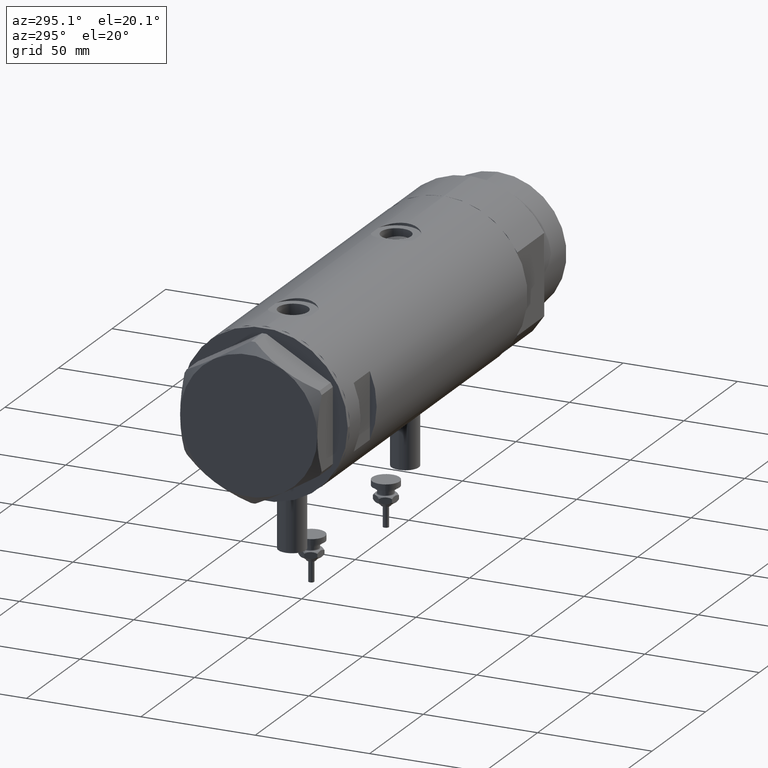
[diagram: clean part render]
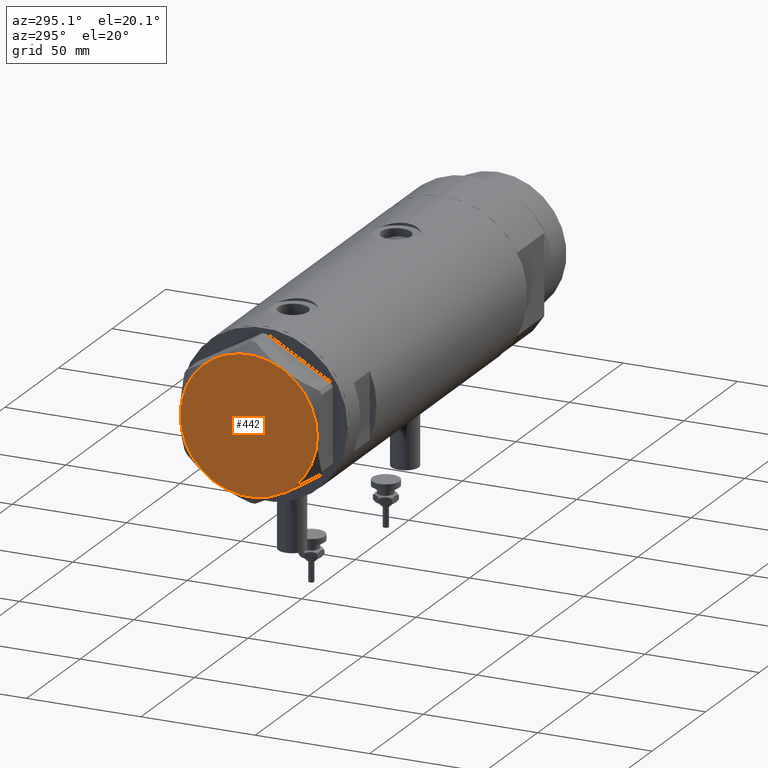
[diagram: same view with one face highlighted and labeled with its STEP entity id]
A machine part, auxiliary view. The second image highlights one B-rep face of the part: STEP entity #442.
In plain terms, the highlighted planar face has unit normal (-1, -0, 0).
Its self-contained STEP definition (entity closure, byte-faithful):
#28 = CARTESIAN_POINT ( 'NONE',  ( 0.000000000000000000, 0.000000000000000000, 14.50000000000000000 ) ) ;
#192 = EDGE_CURVE ( 'NONE', #5269, #619, #918, .T. ) ;
#201 = AXIS2_PLACEMENT_3D ( 'NONE', #3866, #2869, #3808 ) ;
#218 = CARTESIAN_POINT ( 'NONE',  ( -14.99999999999999645, 25.98076211353316367, 14.50000000000000000 ) ) ;
#252 = AXIS2_PLACEMENT_3D ( 'NONE', #1680, #3131, #5015 ) ;
#302 = EDGE_CURVE ( 'NONE', #3000, #1903, #5147, .T. ) ;
#415 = DIRECTION ( 'NONE',  ( 1.000000000000000000, 0.000000000000000000, 0.000000000000000000 ) ) ;
#442 = ADVANCED_FACE ( 'NONE', ( #3983 ), #3490, .T. ) ;
#464 = CIRCLE ( 'NONE', #4396, 30.00000000000000000 ) ;
#619 = VERTEX_POINT ( 'NONE', #993 ) ;
#887 = DIRECTION ( 'NONE',  ( 1.000000000000000000, 0.000000000000000000, 0.000000000000000000 ) ) ;
#918 = CIRCLE ( 'NONE', #5238, 30.00000000000000000 ) ;
#935 = EDGE_LOOP ( 'NONE', ( #5893, #1190, #5639, #4064, #5755, #2722 ) ) ;
#993 = CARTESIAN_POINT ( 'NONE',  ( 14.99999999999999467, 25.98076211353316367, 14.50000000000000000 ) ) ;
#1190 = ORIENTED_EDGE ( 'NONE', *, *, #192, .T. ) ;
#1295 = VERTEX_POINT ( 'NONE', #2493 ) ;
#1380 = EDGE_CURVE ( 'NONE', #3245, #3000, #464, .T. ) ;
#1389 = AXIS2_PLACEMENT_3D ( 'NONE', #3692, #5087, #5532 ) ;
#1672 = DIRECTION ( 'NONE',  ( 0.000000000000000000, 0.000000000000000000, 1.000000000000000000 ) ) ;
#1680 = CARTESIAN_POINT ( 'NONE',  ( 0.000000000000000000, 0.000000000000000000, 14.50000000000000000 ) ) ;
#1843 = CARTESIAN_POINT ( 'NONE',  ( 0.000000000000000000, 0.000000000000000000, 14.50000000000000000 ) ) ;
#1903 = VERTEX_POINT ( 'NONE', #4327 ) ;
#2352 = DIRECTION ( 'NONE',  ( 0.000000000000000000, 0.000000000000000000, 1.000000000000000000 ) ) ;
#2486 = DIRECTION ( 'NONE',  ( 0.000000000000000000, 0.000000000000000000, 1.000000000000000000 ) ) ;
#2493 = CARTESIAN_POINT ( 'NONE',  ( 14.99999999999998757, -25.98076211353316722, 14.50000000000000000 ) ) ;
#2722 = ORIENTED_EDGE ( 'NONE', *, *, #3925, .T. ) ;
#2756 = CIRCLE ( 'NONE', #5664, 30.00000000000000000 ) ;
#2869 = DIRECTION ( 'NONE',  ( 0.000000000000000000, 0.000000000000000000, 1.000000000000000000 ) ) ;
#3000 = VERTEX_POINT ( 'NONE', #4134 ) ;
#3066 = DIRECTION ( 'NONE',  ( 1.000000000000000000, 0.000000000000000000, 0.000000000000000000 ) ) ;
#3131 = DIRECTION ( 'NONE',  ( 0.000000000000000000, 0.000000000000000000, 1.000000000000000000 ) ) ;
#3245 = VERTEX_POINT ( 'NONE', #218 ) ;
#3490 = PLANE ( 'NONE',  #252 ) ;
#3692 = CARTESIAN_POINT ( 'NONE',  ( 0.000000000000000000, 0.000000000000000000, 14.50000000000000000 ) ) ;
#3808 = DIRECTION ( 'NONE',  ( 1.000000000000000000, 0.000000000000000000, 0.000000000000000000 ) ) ;
#3866 = CARTESIAN_POINT ( 'NONE',  ( 0.000000000000000000, 0.000000000000000000, 14.50000000000000000 ) ) ;
#3918 = AXIS2_PLACEMENT_3D ( 'NONE', #4210, #2352, #887 ) ;
#3925 = EDGE_CURVE ( 'NONE', #1903, #1295, #2756, .T. ) ;
#3969 = EDGE_CURVE ( 'NONE', #619, #3245, #5174, .T. ) ;
#3983 = FACE_OUTER_BOUND ( 'NONE', #935, .T. ) ;
#4064 = ORIENTED_EDGE ( 'NONE', *, *, #1380, .T. ) ;
#4116 = DIRECTION ( 'NONE',  ( 0.000000000000000000, 0.000000000000000000, 1.000000000000000000 ) ) ;
#4134 = CARTESIAN_POINT ( 'NONE',  ( -30.00000000000000000, 0.000000000000000000, 14.50000000000000000 ) ) ;
#4210 = CARTESIAN_POINT ( 'NONE',  ( 0.000000000000000000, 0.000000000000000000, 14.50000000000000000 ) ) ;
#4297 = CARTESIAN_POINT ( 'NONE',  ( 30.00000000000000000, 9.013887592422954582E-15, 14.50000000000000000 ) ) ;
#4327 = CARTESIAN_POINT ( 'NONE',  ( -14.99999999999999645, -25.98076211353316367, 14.50000000000000000 ) ) ;
#4345 = DIRECTION ( 'NONE',  ( 1.000000000000000000, 0.000000000000000000, 0.000000000000000000 ) ) ;
#4396 = AXIS2_PLACEMENT_3D ( 'NONE', #5817, #1672, #3066 ) ;
#4622 = CIRCLE ( 'NONE', #201, 30.00000000000000000 ) ;
#5015 = DIRECTION ( 'NONE',  ( 1.000000000000000000, 0.000000000000000000, -0.000000000000000000 ) ) ;
#5087 = DIRECTION ( 'NONE',  ( 0.000000000000000000, 0.000000000000000000, 1.000000000000000000 ) ) ;
#5147 = CIRCLE ( 'NONE', #1389, 30.00000000000000000 ) ;
#5174 = CIRCLE ( 'NONE', #3918, 30.00000000000000000 ) ;
#5238 = AXIS2_PLACEMENT_3D ( 'NONE', #28, #2486, #4345 ) ;
#5240 = EDGE_CURVE ( 'NONE', #1295, #5269, #4622, .T. ) ;
#5269 = VERTEX_POINT ( 'NONE', #4297 ) ;
#5532 = DIRECTION ( 'NONE',  ( 1.000000000000000000, 0.000000000000000000, 0.000000000000000000 ) ) ;
#5639 = ORIENTED_EDGE ( 'NONE', *, *, #3969, .T. ) ;
#5664 = AXIS2_PLACEMENT_3D ( 'NONE', #1843, #4116, #415 ) ;
#5755 = ORIENTED_EDGE ( 'NONE', *, *, #302, .T. ) ;
#5817 = CARTESIAN_POINT ( 'NONE',  ( 0.000000000000000000, 0.000000000000000000, 14.50000000000000000 ) ) ;
#5893 = ORIENTED_EDGE ( 'NONE', *, *, #5240, .T. ) ;